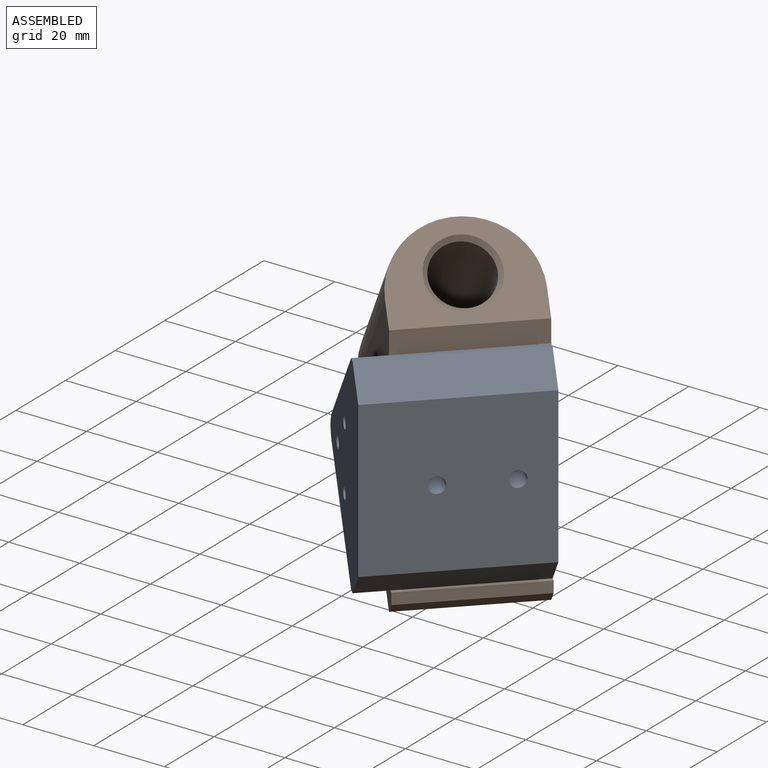
[diagram: assembled view]
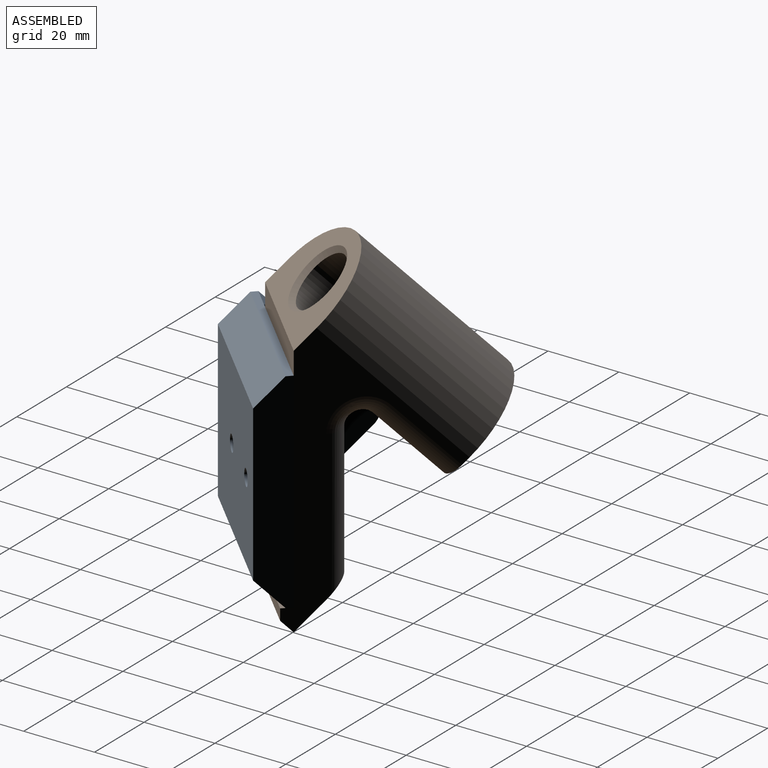
[diagram: assembled view, second angle]
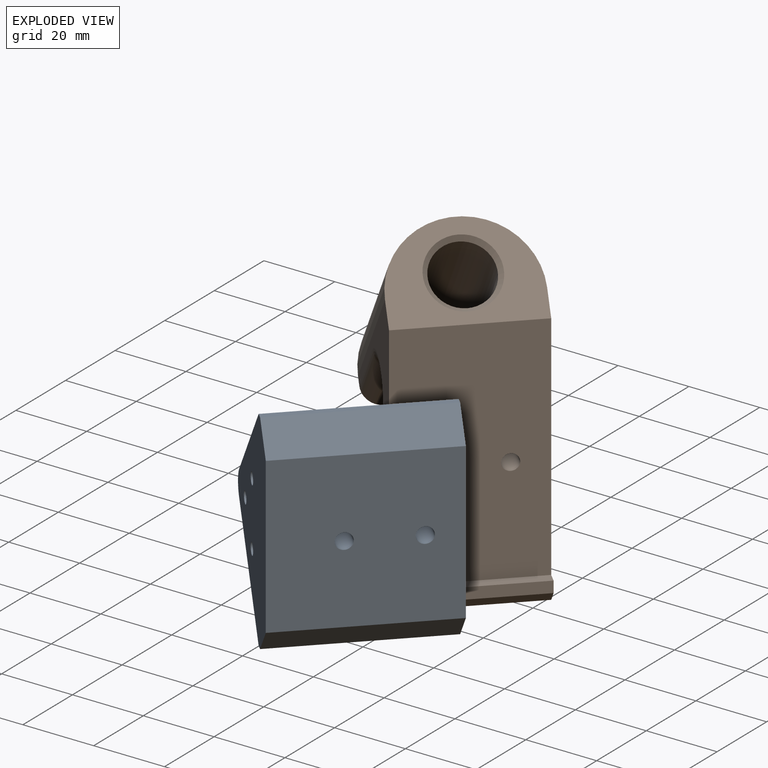
[diagram: exploded view]
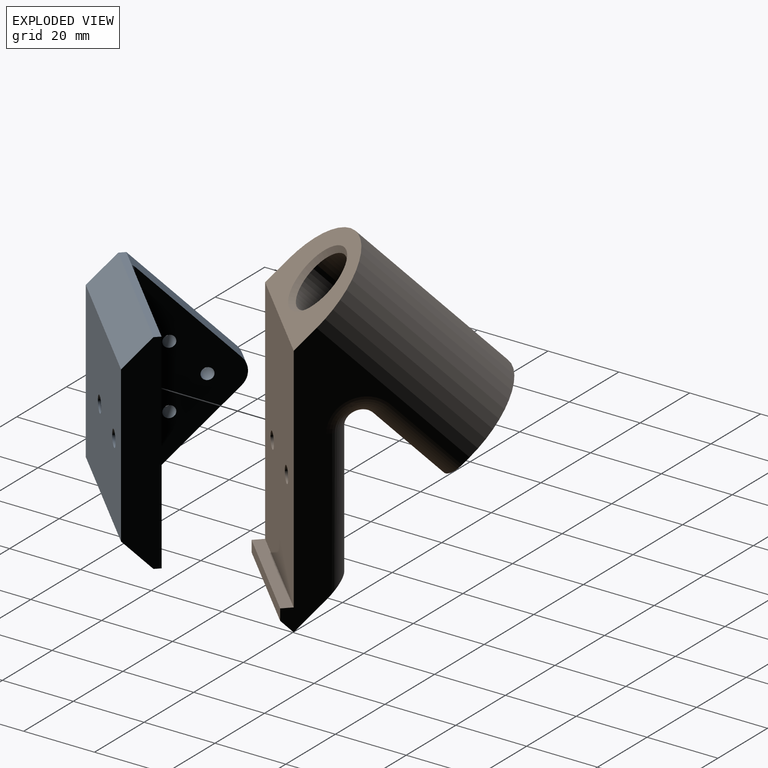
[diagram: exploded view, second angle]
ASSEMBLY  parts=2 mates=3
PART A: 18 faces, bbox 44.1x44.1x47 mm
  f0: plane 40.02x40.02mm, normal (0,0,1), area 769.7mm2, adj f5,f6,f11,f12,f13,f14,f15
  f1: plane 43.17x43.17mm, normal (0,0,-1), area 1348.5mm2, adj f2,f4,f5,f6,f7,f11,f12,f13
  f2: plane 46.99x31.04mm, normal (0.71,-0.71,0), area 2031.1mm2, adj f1,f8,f9,f10,f16,f17
  f3: plane 41.82x41.82mm, normal (-0.71,0.71,0), area 2296.6mm2, adj f4,f7,f8,f9,f10,f14
  f4: plane 46.99x1.35mm, normal (0.71,0.71,0), area 89.5mm2, adj f1,f3,f5,f8,f17
  f5: plane 36.74x7.62mm, normal (0,1,0), area 233.8mm2, adj f0,f1,f4,f14,f15
  f6: plane 36.74x7.62mm, normal (-1,0,0), area 233.8mm2, adj f0,f1,f7,f14,f15
  f7: plane 46.99x1.35mm, normal (-0.71,-0.71,0), area 89.5mm2, adj f1,f3,f6,f8,f16
  f8: plane 43.17x43.17mm, normal (0,0,1), area 505.3mm2, adj f2,f3,f4,f7,f16,f17
  f9: cylinder r=2.25mm len=9.92mm, axis (-0.71,0.71,0), area 134.7mm2, adj f2,f3
  f10: cylinder r=2.25mm len=9.92mm, axis (-0.71,0.71,0), area 134.7mm2, adj f2,f3
  f11: cylinder r=1.65mm len=6.35mm, axis (0,0,1), area 65.9mm2, adj f0,f1
  f12: cylinder r=1.65mm len=6.35mm, axis (0,0,1), area 65.9mm2, adj f0,f1
  f13: cylinder r=1.65mm len=6.35mm, axis (0,0,1), area 65.9mm2, adj f0,f1
  f14: cylinder r=1.27mm len=42.72mm, axis (-0.71,-0.71,0), area 116.1mm2, adj f0,f3,f5,f6
  f15: cylinder r=5.08mm len=6.35mm, axis (0,0,-1), area 50.7mm2, adj f0,f1,f5,f6
  f16: plane 46.99x10.78mm, normal (0,-1,0), area 506.4mm2, adj f1,f2,f7,f8
  f17: plane 46.99x10.78mm, normal (1,0,0), area 506.4mm2, adj f1,f2,f4,f8
PART B: 38 faces, bbox 77.5x38.1x54.4 mm
  f0: plane 46.31x46.31mm, normal (0.71,0,0.71), area 2463.4mm2, adj f2,f3,f5,f7,f9,f35
  f1: plane 27.94x26.34mm, normal (-0.71,0,-0.71), area 948.3mm2, adj f11,f12,f14,f15,f16,f17,f18,f19
  f2: cylinder r=2.25mm len=10.04mm, axis (0.71,0,0.71), area 137.1mm2, adj f0,f26
  f3: cylinder r=2.25mm len=10.04mm, axis (0.71,0,0.71), area 137.1mm2, adj f0,f13
  f4: plane 27.94x23.64mm, normal (1,0,0), area 660.5mm2, adj f10,f12,f29,f32
  f5: plane 58.42x50.8mm, normal (0,1,0), area 773.1mm2, adj f0,f6,f9,f10,f11,f29,f30,f31
  f6: cylinder r=19.05mm len=50.8mm, axis (0,0,-1), area 3040.2mm2, adj f5,f7,f9,f10
  f7: plane 58.42x50.8mm, normal (0,-1,0), area 773.1mm2, adj f0,f6,f9,f10,f11,f32,f33,f34
  f8: cylinder r=8.26mm len=48.26mm, axis (0,0,-1), area 2503.1mm2, adj f27,f28
  f9: plane 38.1x26.67mm, normal (0,0,1), area 575.3mm2, adj f0,f5,f6,f7,f28
  f10: plane 38.1x26.67mm, normal (0,0,-1), area 564.3mm2, adj f4,f5,f6,f7,f27,f29,f32
  f11: plane 38.1x17.96mm, normal (0,0,-1), area 668.6mm2, adj f1,f5,f7,f31,f34,f37
  f12: cylinder r=3.81mm len=27.94mm, axis (0,1,0), area 250.8mm2, adj f1,f4,f30,f33
  f13: plane 7.3x5.96mm, normal (-0.71,0,-0.71), area 30.2mm2, adj f3,f14,f15,f16,f17,f18,f19
  f14: plane 3.65x3.61mm, normal (0.61,0.5,-0.61), area 12.6mm2, adj f1,f13,f15,f19
  f15: plane 3.65x3.61mm, normal (0.61,-0.5,-0.61), area 12.6mm2, adj f1,f13,f14,f16
  f16: plane 5.1x5.1mm, normal (0,-1,0), area 12.6mm2, adj f1,f13,f15,f17
  f17: plane 3.65x3.61mm, normal (-0.61,-0.5,0.61), area 12.6mm2, adj f1,f13,f16,f18
  f18: plane 3.65x3.61mm, normal (-0.61,0.5,0.61), area 12.6mm2, adj f1,f13,f17,f19
  f19: plane 5.1x5.1mm, normal (0,1,0), area 12.6mm2, adj f1,f13,f14,f18
  f20: plane 3.65x3.61mm, normal (0.61,-0.5,-0.61), area 12.6mm2, adj f1,f21,f25,f26
  f21: plane 5.1x5.1mm, normal (0,-1,0), area 12.6mm2, adj f1,f20,f22,f26
  f22: plane 3.65x3.61mm, normal (-0.61,-0.5,0.61), area 12.6mm2, adj f1,f21,f23,f26
  f23: plane 3.65x3.61mm, normal (-0.61,0.5,0.61), area 12.6mm2, adj f1,f22,f24,f26
  f24: plane 5.1x5.1mm, normal (0,1,0), area 12.6mm2, adj f1,f23,f25,f26
  f25: plane 3.65x3.61mm, normal (0.61,0.5,-0.61), area 12.6mm2, adj f1,f20,f24,f26
  f26: plane 7.3x5.96mm, normal (-0.71,0,-0.71), area 30.2mm2, adj f2,f20,f21,f22,f23,f24,f25
  f27: cone r=9.53mm half-angle=45deg, axis (0,0,-1), area 100.3mm2, adj f8,f10
  f28: cone r=8.26mm half-angle=45deg, axis (0,0,1), area 100.3mm2, adj f8,f9
  f29: cylinder r=5.08mm len=23.64mm, axis (0,0,1), area 188.6mm2, adj f4,f5,f10,f30
  f30: torus R=8.89mm, axis (0,1,0), area 106.3mm2, adj f5,f12,f29,f31
  f31: cylinder r=5.08mm len=33.52mm, axis (0.71,0,-0.71), area 311.9mm2, adj f1,f5,f11,f30
  f32: cylinder r=5.08mm len=23.64mm, axis (0,0,-1), area 188.6mm2, adj f4,f7,f10,f33
  f33: torus R=8.89mm, axis (0,1,0), area 106.3mm2, adj f7,f12,f32,f34
  f34: cylinder r=5.08mm len=33.52mm, axis (-0.71,0,0.71), area 311.9mm2, adj f1,f7,f11,f33
  f35: plane 38.1x2.25mm, normal (-0.71,0,0.71), area 121mm2, adj f0,f5,f7,f36
  f36: plane 38.1x2.25mm, normal (0.71,0,0.71), area 121mm2, adj f5,f7,f35,f37
  f37: plane 38.1x4.49mm, normal (1,0,0), area 171.1mm2, adj f5,f7,f11,f36
PLACE A rot(axis=(-0.71,0.71,0),90deg) t=(-26.5,-34.01,34.08)mm
PLACE B rot(axis=(0.28,0.68,-0.68),62.8deg) t=(-39.32,18.32,39.47)mm
MATE cylindrical A.f10 <-> B.f2  axis (-0.71,0.71,0) through (-16.85,-17.62,34.08)mm
MATE planar B.f0 <-> A.f3  axis (0.71,-0.71,0) through (-10.11,-10.89,37.3)mm
MATE cylindrical B.f3 <-> A.f9  axis (0.71,-0.71,0) through (-6.81,-0.72,34.08)mm
